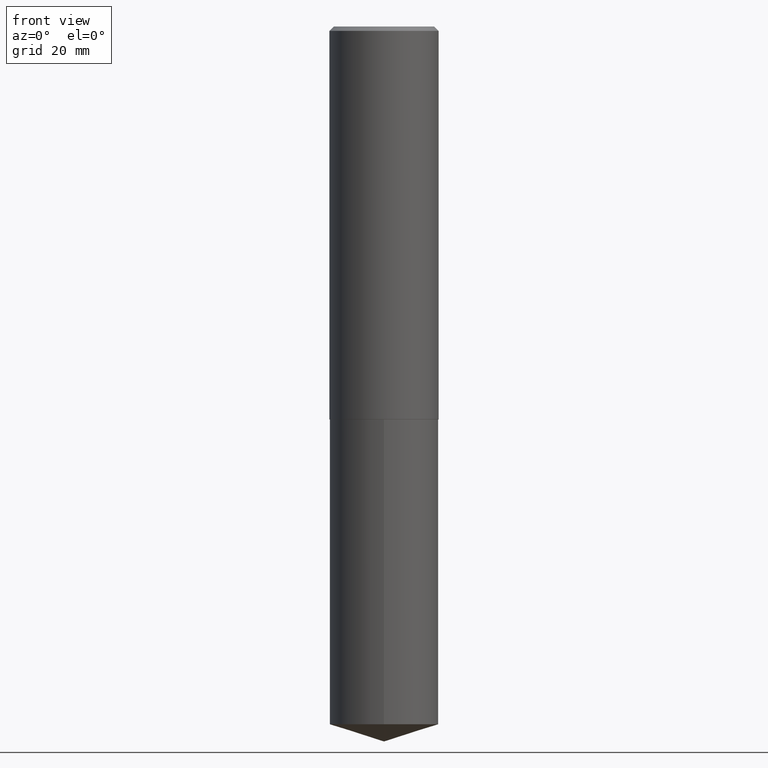
[diagram: clean part render]
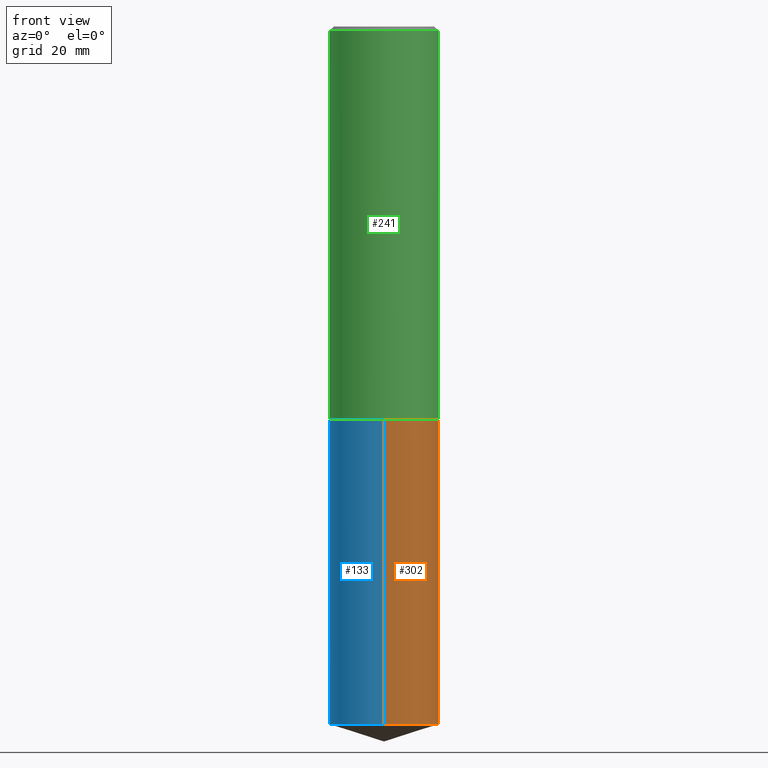
[diagram: same view with three faces highlighted in distinct colors, each labeled with its STEP entity id]
A machine part, front view with three faces highlighted in distinct colors.
Their STEP definitions:

[orange] entity #302 — the highlighted cylindrical surface (partial cylindrical patch) has radius 10 mm, axis along (-0, 0, 1).
#3 = DIRECTION ( 'NONE',  ( -2.446283281185317163E-29, 3.490314964285848959E-15, 1.000000000000000000 ) ) ;
#8 = EDGE_LOOP ( 'NONE', ( #262, #146, #225, #130 ) ) ;
#21 = LINE ( 'NONE', #230, #51 ) ;
#28 = CARTESIAN_POINT ( 'NONE',  ( -2.749192406204959760E-15, -0.3937000000000174804, -5.033366866818345997 ) ) ;
#43 = CIRCLE ( 'NONE', #213, 0.3937000000000000499 ) ;
#50 = DIRECTION ( 'NONE',  ( -2.446283281185317163E-29, 3.490314964285848959E-15, 1.000000000000000000 ) ) ;
#51 = VECTOR ( 'NONE', #197, 39.37007874015748143 ) ;
#74 = VECTOR ( 'NONE', #3, 39.37007874015748143 ) ;
#79 = VERTEX_POINT ( 'NONE', #373 ) ;
#81 = DIRECTION ( 'NONE',  ( -6.982962677686265133E-15, -1.000000000000000000, 4.163344669033674845E-15 ) ) ;
#97 = EDGE_CURVE ( 'NONE', #79, #219, #21, .T. ) ;
#118 = CARTESIAN_POINT ( 'NONE',  ( -2.749192406205013402E-15, -0.3937000000000099309, -2.834699999999998443 ) ) ;
#119 = CARTESIAN_POINT ( 'NONE',  ( 6.932170424893007423E-29, -9.897302151218665974E-15, -2.834700000000000220 ) ) ;
#130 = ORIENTED_EDGE ( 'NONE', *, *, #291, .F. ) ;
#141 = CARTESIAN_POINT ( 'NONE',  ( 2.797406750687637454E-15, 0.3936999999999901134, -2.834700000000001996 ) ) ;
#146 = ORIENTED_EDGE ( 'NONE', *, *, #97, .T. ) ;
#152 = LINE ( 'NONE', #118, #74 ) ;
#173 = EDGE_CURVE ( 'NONE', #255, #219, #352, .T. ) ;
#180 = CYLINDRICAL_SURFACE ( 'NONE', #189, 0.3937000000000000499 ) ;
#189 = AXIS2_PLACEMENT_3D ( 'NONE', #119, #362, #355 ) ;
#197 = DIRECTION ( 'NONE',  ( -2.446283281185317163E-29, 3.490314964285848959E-15, 1.000000000000000000 ) ) ;
#213 = AXIS2_PLACEMENT_3D ( 'NONE', #319, #50, #256 ) ;
#219 = VERTEX_POINT ( 'NONE', #141 ) ;
#221 = EDGE_CURVE ( 'NONE', #290, #79, #43, .T. ) ;
#224 = DIRECTION ( 'NONE',  ( -2.446283281185317163E-29, 3.490314964285848959E-15, 1.000000000000000000 ) ) ;
#225 = ORIENTED_EDGE ( 'NONE', *, *, #173, .F. ) ;
#230 = CARTESIAN_POINT ( 'NONE',  ( 2.797406750687583417E-15, 0.3936999999999901134, -2.834700000000001996 ) ) ;
#255 = VERTEX_POINT ( 'NONE', #292 ) ;
#256 = DIRECTION ( 'NONE',  ( -6.982962677686265133E-15, -1.000000000000000000, 2.775563112689116301E-15 ) ) ;
#262 = ORIENTED_EDGE ( 'NONE', *, *, #221, .T. ) ;
#282 = CARTESIAN_POINT ( 'NONE',  ( 6.932170424893007423E-29, -9.897302151218665974E-15, -2.834700000000000220 ) ) ;
#290 = VERTEX_POINT ( 'NONE', #28 ) ;
#291 = EDGE_CURVE ( 'NONE', #290, #255, #152, .T. ) ;
#292 = CARTESIAN_POINT ( 'NONE',  ( -2.749192406205013402E-15, -0.3937000000000099309, -2.834699999999998443 ) ) ;
#302 = ADVANCED_FACE ( 'NONE', ( #357 ), #180, .T. ) ;
#319 = CARTESIAN_POINT ( 'NONE',  ( 1.231073242208683257E-28, -1.757134201795422108E-14, -5.033366866818346885 ) ) ;
#352 = CIRCLE ( 'NONE', #369, 0.3937000000000000499 ) ;
#355 = DIRECTION ( 'NONE',  ( -6.982962677686265133E-15, -1.000000000000000000, 4.163344669033674845E-15 ) ) ;
#357 = FACE_OUTER_BOUND ( 'NONE', #8, .T. ) ;
#362 = DIRECTION ( 'NONE',  ( -2.446283281185317163E-29, 3.490314964285848959E-15, 1.000000000000000000 ) ) ;
#369 = AXIS2_PLACEMENT_3D ( 'NONE', #282, #224, #81 ) ;
#373 = CARTESIAN_POINT ( 'NONE',  ( 2.797406750687637060E-15, 0.3936999999999823974, -5.033366866818347773 ) ) ;

[blue] entity #133 — the highlighted cylindrical surface (partial cylindrical patch) has radius 10 mm, axis along (-0, 0, 1).
#3 = DIRECTION ( 'NONE',  ( -2.446283281185317163E-29, 3.490314964285848959E-15, 1.000000000000000000 ) ) ;
#9 = EDGE_CURVE ( 'NONE', #79, #290, #387, .T. ) ;
#17 = ORIENTED_EDGE ( 'NONE', *, *, #291, .T. ) ;
#18 = DIRECTION ( 'NONE',  ( -2.446283281185317163E-29, 3.490314964285848959E-15, 1.000000000000000000 ) ) ;
#21 = LINE ( 'NONE', #230, #51 ) ;
#28 = CARTESIAN_POINT ( 'NONE',  ( -2.749192406204959760E-15, -0.3937000000000174804, -5.033366866818345997 ) ) ;
#35 = AXIS2_PLACEMENT_3D ( 'NONE', #274, #305, #215 ) ;
#51 = VECTOR ( 'NONE', #197, 39.37007874015748143 ) ;
#72 = DIRECTION ( 'NONE',  ( -6.982962677686265133E-15, -1.000000000000000000, 4.163344669033674845E-15 ) ) ;
#74 = VECTOR ( 'NONE', #3, 39.37007874015748143 ) ;
#79 = VERTEX_POINT ( 'NONE', #373 ) ;
#86 = EDGE_CURVE ( 'NONE', #219, #255, #186, .T. ) ;
#97 = EDGE_CURVE ( 'NONE', #79, #219, #21, .T. ) ;
#118 = CARTESIAN_POINT ( 'NONE',  ( -2.749192406205013402E-15, -0.3937000000000099309, -2.834699999999998443 ) ) ;
#133 = ADVANCED_FACE ( 'NONE', ( #199 ), #263, .T. ) ;
#137 = AXIS2_PLACEMENT_3D ( 'NONE', #354, #18, #289 ) ;
#141 = CARTESIAN_POINT ( 'NONE',  ( 2.797406750687637454E-15, 0.3936999999999901134, -2.834700000000001996 ) ) ;
#152 = LINE ( 'NONE', #118, #74 ) ;
#168 = EDGE_LOOP ( 'NONE', ( #371, #348, #17, #298 ) ) ;
#186 = CIRCLE ( 'NONE', #231, 0.3937000000000000499 ) ;
#191 = CARTESIAN_POINT ( 'NONE',  ( 6.932170424893007423E-29, -9.897302151218665974E-15, -2.834700000000000220 ) ) ;
#197 = DIRECTION ( 'NONE',  ( -2.446283281185317163E-29, 3.490314964285848959E-15, 1.000000000000000000 ) ) ;
#199 = FACE_OUTER_BOUND ( 'NONE', #168, .T. ) ;
#215 = DIRECTION ( 'NONE',  ( -6.982962677686265133E-15, -1.000000000000000000, 2.775563112689116301E-15 ) ) ;
#219 = VERTEX_POINT ( 'NONE', #141 ) ;
#230 = CARTESIAN_POINT ( 'NONE',  ( 2.797406750687583417E-15, 0.3936999999999901134, -2.834700000000001996 ) ) ;
#231 = AXIS2_PLACEMENT_3D ( 'NONE', #191, #304, #72 ) ;
#255 = VERTEX_POINT ( 'NONE', #292 ) ;
#263 = CYLINDRICAL_SURFACE ( 'NONE', #137, 0.3937000000000000499 ) ;
#274 = CARTESIAN_POINT ( 'NONE',  ( 1.231073242208683257E-28, -1.757134201795422108E-14, -5.033366866818346885 ) ) ;
#289 = DIRECTION ( 'NONE',  ( -6.982962677686265133E-15, -1.000000000000000000, 4.163344669033674845E-15 ) ) ;
#290 = VERTEX_POINT ( 'NONE', #28 ) ;
#291 = EDGE_CURVE ( 'NONE', #290, #255, #152, .T. ) ;
#292 = CARTESIAN_POINT ( 'NONE',  ( -2.749192406205013402E-15, -0.3937000000000099309, -2.834699999999998443 ) ) ;
#298 = ORIENTED_EDGE ( 'NONE', *, *, #86, .F. ) ;
#304 = DIRECTION ( 'NONE',  ( -2.446283281185317163E-29, 3.490314964285848959E-15, 1.000000000000000000 ) ) ;
#305 = DIRECTION ( 'NONE',  ( -2.446283281185317163E-29, 3.490314964285848959E-15, 1.000000000000000000 ) ) ;
#348 = ORIENTED_EDGE ( 'NONE', *, *, #9, .T. ) ;
#354 = CARTESIAN_POINT ( 'NONE',  ( 6.932170424893007423E-29, -9.897302151218665974E-15, -2.834700000000000220 ) ) ;
#371 = ORIENTED_EDGE ( 'NONE', *, *, #97, .F. ) ;
#373 = CARTESIAN_POINT ( 'NONE',  ( 2.797406750687637060E-15, 0.3936999999999823974, -5.033366866818347773 ) ) ;
#387 = CIRCLE ( 'NONE', #35, 0.3937000000000000499 ) ;

[green] entity #241 — the highlighted cylindrical surface (partial cylindrical patch) has radius 10 mm, axis along (-0, 0, 1).
#2 = AXIS2_PLACEMENT_3D ( 'NONE', #327, #82, #181 ) ;
#6 = EDGE_CURVE ( 'NONE', #187, #47, #161, .T. ) ;
#10 = EDGE_CURVE ( 'NONE', #165, #47, #164, .T. ) ;
#37 = ORIENTED_EDGE ( 'NONE', *, *, #384, .T. ) ;
#39 = DIRECTION ( 'NONE',  ( -2.445468806185136597E-29, 3.491481338843145583E-15, 1.000000000000000000 ) ) ;
#40 = CARTESIAN_POINT ( 'NONE',  ( 0.3937000000000000499, -2.858301198043932317E-15, -0.03125000000000014572 ) ) ;
#47 = VERTEX_POINT ( 'NONE', #40 ) ;
#64 = ORIENTED_EDGE ( 'NONE', *, *, #10, .T. ) ;
#76 = VERTEX_POINT ( 'NONE', #139 ) ;
#82 = DIRECTION ( 'NONE',  ( -2.445468806185136597E-29, 3.491481338843145583E-15, 1.000000000000000000 ) ) ;
#105 = CARTESIAN_POINT ( 'NONE',  ( 0.3937000000000004385, -1.264474881675433005E-14, -2.834200000000000053 ) ) ;
#107 = DIRECTION ( 'NONE',  ( -2.445468806185136597E-29, 3.491481338843145583E-15, 1.000000000000000000 ) ) ;
#112 = EDGE_CURVE ( 'NONE', #76, #187, #203, .T. ) ;
#135 = VECTOR ( 'NONE', #366, 39.37007874015748143 ) ;
#136 = CIRCLE ( 'NONE', #2, 0.3937000000000004385 ) ;
#139 = CARTESIAN_POINT ( 'NONE',  ( -0.3937000000000004385, -7.098149659861725740E-15, -2.834200000000000053 ) ) ;
#161 = CIRCLE ( 'NONE', #279, 0.3937000000000000499 ) ;
#164 = LINE ( 'NONE', #272, #135 ) ;
#165 = VERTEX_POINT ( 'NONE', #105 ) ;
#171 = ORIENTED_EDGE ( 'NONE', *, *, #6, .F. ) ;
#179 = DIRECTION ( 'NONE',  ( 1.000000000000000000, -6.982962677686266711E-15, 4.876176775795935793E-29 ) ) ;
#181 = DIRECTION ( 'NONE',  ( 1.000000000000000000, -6.982962677686265922E-15, 0.000000000000000000 ) ) ;
#187 = VERTEX_POINT ( 'NONE', #227 ) ;
#192 = CARTESIAN_POINT ( 'NONE',  ( 7.642090019328588649E-31, -1.091087918388488171E-16, -0.03125000000000014572 ) ) ;
#203 = LINE ( 'NONE', #350, #251 ) ;
#204 = EDGE_LOOP ( 'NONE', ( #312, #37, #64, #171 ) ) ;
#227 = CARTESIAN_POINT ( 'NONE',  ( -0.3937000000000000499, -2.204925850506529633E-15, -0.03125000000000014572 ) ) ;
#241 = ADVANCED_FACE ( 'NONE', ( #310 ), #287, .T. ) ;
#251 = VECTOR ( 'NONE', #286, 39.37007874015748143 ) ;
#272 = CARTESIAN_POINT ( 'NONE',  ( 0.3937000000000002164, -2.749192406205084794E-15, 1.919750796630861012E-29 ) ) ;
#277 = AXIS2_PLACEMENT_3D ( 'NONE', #307, #107, #179 ) ;
#279 = AXIS2_PLACEMENT_3D ( 'NONE', #192, #39, #340 ) ;
#286 = DIRECTION ( 'NONE',  ( -2.445468806185136877E-29, 3.491481338843145188E-15, 1.000000000000000000 ) ) ;
#287 = CYLINDRICAL_SURFACE ( 'NONE', #277, 0.3937000000000002164 ) ;
#307 = CARTESIAN_POINT ( 'NONE',  ( 0.000000000000000000, 0.000000000000000000, 0.000000000000000000 ) ) ;
#310 = FACE_OUTER_BOUND ( 'NONE', #204, .T. ) ;
#312 = ORIENTED_EDGE ( 'NONE', *, *, #112, .F. ) ;
#327 = CARTESIAN_POINT ( 'NONE',  ( 6.930947690489914621E-29, -9.895556410549243682E-15, -2.834200000000000053 ) ) ;
#340 = DIRECTION ( 'NONE',  ( 1.000000000000000000, -6.982962677686265922E-15, 0.000000000000000000 ) ) ;
#350 = CARTESIAN_POINT ( 'NONE',  ( -0.3937000000000002164, 2.797406750687515970E-15, -1.936584745033357576E-29 ) ) ;
#366 = DIRECTION ( 'NONE',  ( -2.445468806185136877E-29, 3.491481338843145188E-15, 1.000000000000000000 ) ) ;
#384 = EDGE_CURVE ( 'NONE', #76, #165, #136, .T. ) ;